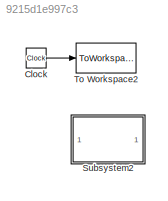
MODEL slx_9215d1e997c3
KIND model
CONFIG AbsTol = auto
CONFIG FixedStep = auto
CONFIG MaxStep = auto
CONFIG MinStep = 1e-10
CONFIG RelTol = 1e-1
CONFIG SampleTimeConstraint = Unconstrained
CONFIG Solver = ode45
CONFIG SolverMode = Auto
CONFIG SolverName = ode45
CONFIG StartTime = 0.0
CONFIG StopTime = 20
BLOCK [Clock] Clock
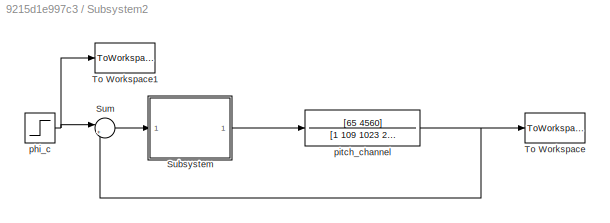
BLOCK [SubSystem] Subsystem2
  Ports = []
  RequestExecContextInheritance = off
  Variant = off
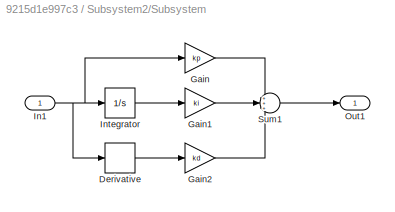
BLOCK [SubSystem] Subsystem2/Subsystem
  Ports = [1, 1]
  RequestExecContextInheritance = off
  Variant = off
BLOCK [Derivative] Subsystem2/Subsystem/Derivative
BLOCK [Gain] Subsystem2/Subsystem/Gain
  Gain = kp
  OutDataTypeStr = Inherit: Inherit via internal rule
  ParamDataTypeStr = Inherit: Inherit via internal rule
  SaturateOnIntegerOverflow = off
BLOCK [Gain] Subsystem2/Subsystem/Gain1
  Gain = ki
  OutDataTypeStr = Inherit: Inherit via internal rule
  ParamDataTypeStr = Inherit: Inherit via internal rule
  SaturateOnIntegerOverflow = off
BLOCK [Gain] Subsystem2/Subsystem/Gain2
  Gain = kd
  OutDataTypeStr = Inherit: Inherit via internal rule
  ParamDataTypeStr = Inherit: Inherit via internal rule
  SaturateOnIntegerOverflow = off
BLOCK [Inport] Subsystem2/Subsystem/In1
  IconDisplay = Port number
BLOCK [Integrator] Subsystem2/Subsystem/Integrator
  Ports = [1, 1]
BLOCK [Outport] Subsystem2/Subsystem/Out1
  IconDisplay = Port number
BLOCK [Sum] Subsystem2/Subsystem/Sum1
  IconShape = round
  InputSameDT = off
  Inputs = +++
  OutDataTypeStr = Inherit: Inherit via internal rule
  Ports = [3, 1]
  SaturateOnIntegerOverflow = off
BLOCK [Sum] Subsystem2/Sum
  IconShape = round
  InputSameDT = off
  Inputs = |+-
  OutDataTypeStr = Inherit: Inherit via internal rule
  Ports = [2, 1]
  SaturateOnIntegerOverflow = off
BLOCK [ToWorkspace] Subsystem2/To Workspace
  FixptAsFi = on
  MaxDataPoints = inf
  Ports = [1]
  SampleTime = -1
  Save2DSignal = 3-D array (concatenate along third dimension)
  VariableName = phi
BLOCK [ToWorkspace] Subsystem2/To Workspace1
  FixptAsFi = on
  MaxDataPoints = inf
  Ports = [1]
  SampleTime = -1
  Save2DSignal = 3-D array (concatenate along third dimension)
  VariableName = phi_c
BLOCK [Step] Subsystem2/phi_c
  SampleTime = 0
  Time = 0
BLOCK [TransferFcn] Subsystem2/pitch_channel
  Denominator = [1 109 1023 2935]
  Numerator = [65 4560]
BLOCK [ToWorkspace] To Workspace2
  FixptAsFi = on
  MaxDataPoints = inf
  Ports = [1]
  SampleTime = -1
  Save2DSignal = 3-D array (concatenate along third dimension)
  VariableName = t_roll
LINE Clock:1 -> To Workspace2:1
LINE Subsystem2/Subsystem/Derivative:1 -> Subsystem2/Subsystem/Gain2:1
LINE Subsystem2/Subsystem/Gain1:1 -> Subsystem2/Subsystem/Sum1:2
LINE Subsystem2/Subsystem/Gain2:1 -> Subsystem2/Subsystem/Sum1:3
LINE Subsystem2/Subsystem/Gain:1 -> Subsystem2/Subsystem/Sum1:1
NET Subsystem2/Subsystem/In1:1 -> Subsystem2/Subsystem/Derivative:1, Subsystem2/Subsystem/Gain:1, Subsystem2/Subsystem/Integrator:1
LINE Subsystem2/Subsystem/Integrator:1 -> Subsystem2/Subsystem/Gain1:1
LINE Subsystem2/Subsystem/Sum1:1 -> Subsystem2/Subsystem/Out1:1
LINE Subsystem2/Subsystem:1 -> Subsystem2/pitch_channel:1
LINE Subsystem2/Sum:1 -> Subsystem2/Subsystem:1
NET Subsystem2/phi_c:1 -> Subsystem2/Sum:1, Subsystem2/To Workspace1:1
NET Subsystem2/pitch_channel:1 -> Subsystem2/Sum:2, Subsystem2/To Workspace:1
note: NET lines group one-source signal fan-out (src -> all destinations, sorted); 1:1 wires keep LINE
